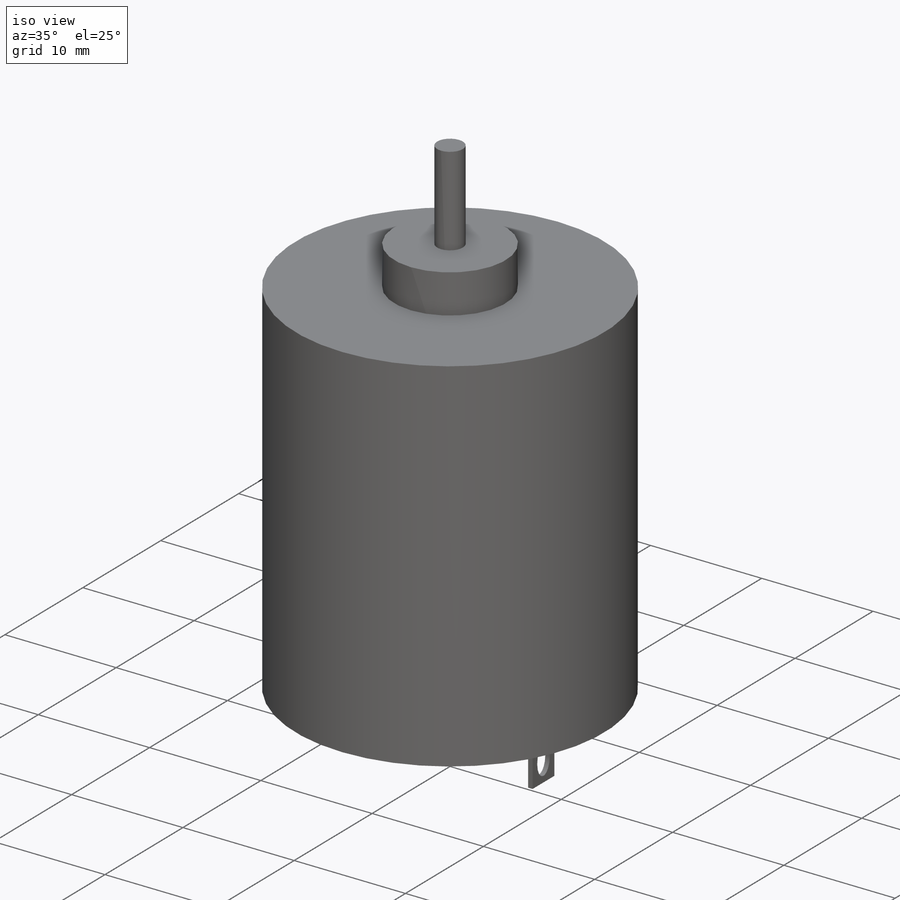
[diagram: iso view]
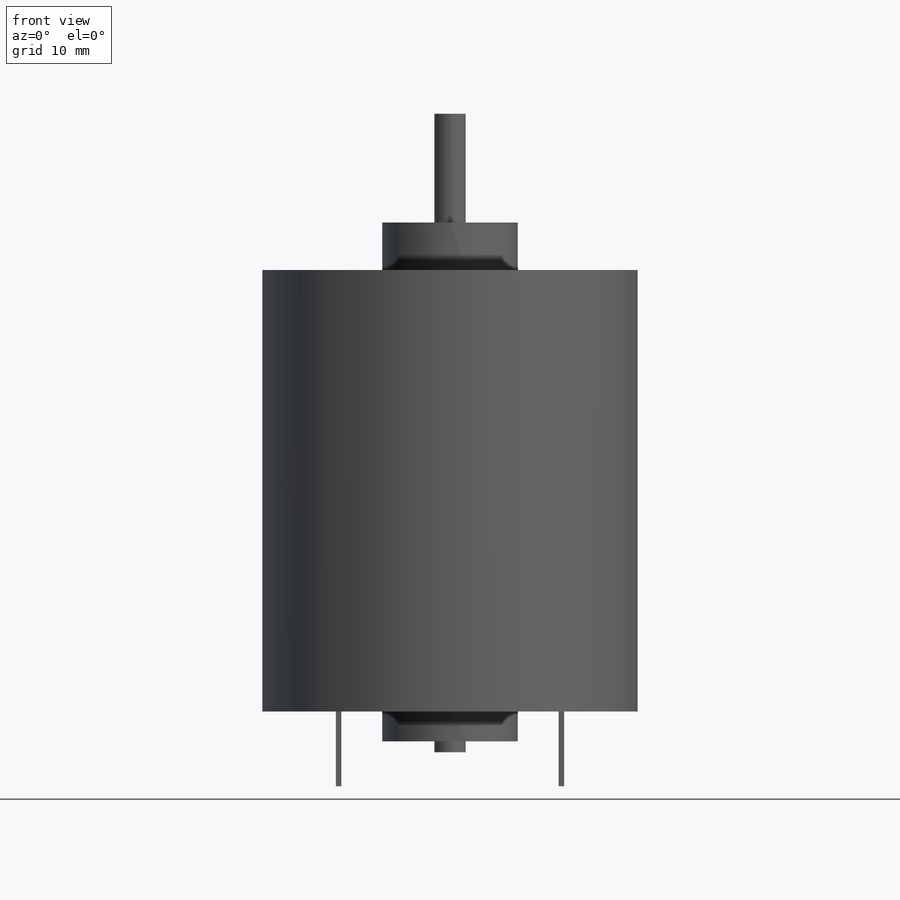
[diagram: front view]
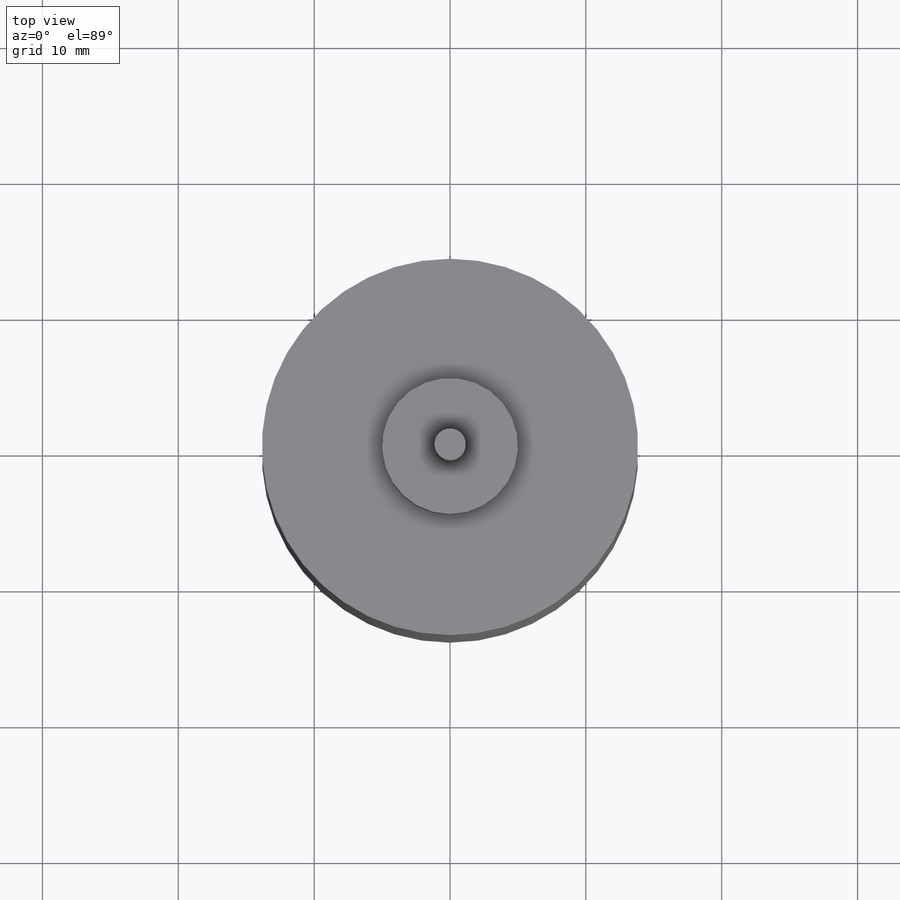
[diagram: top view]
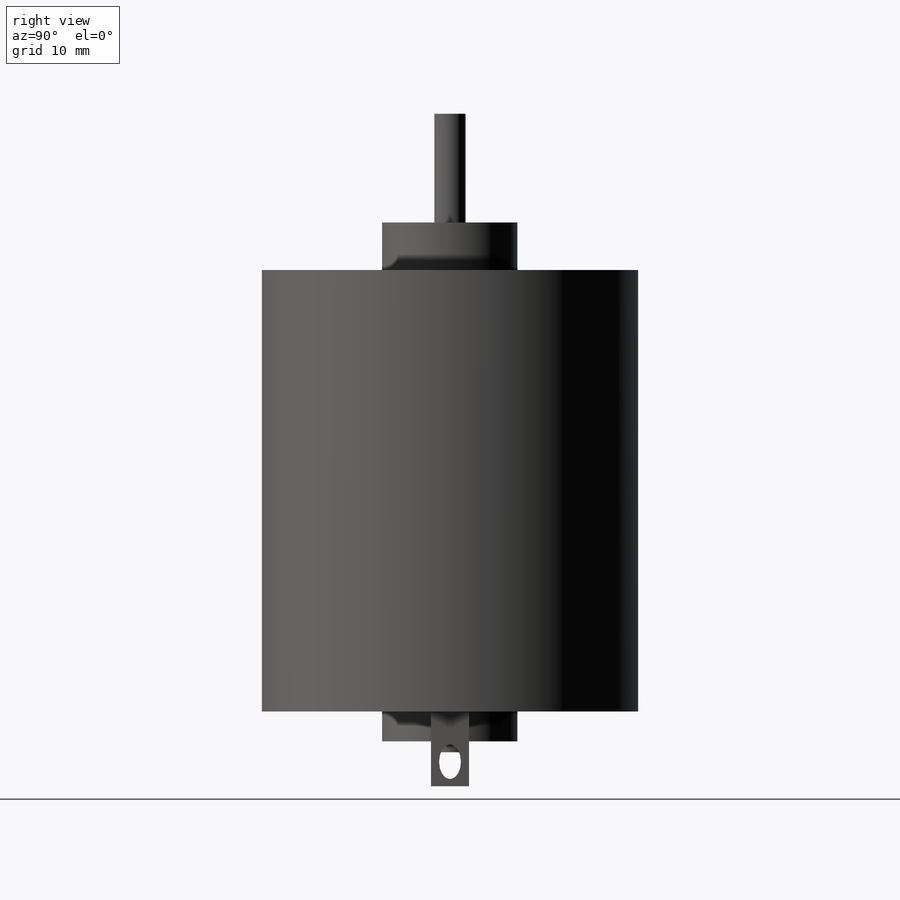
[diagram: right view]
SOLIDWORKS PART (.sldprt)
format: sldprt  version: not decoded by parser v0  size: 219,648 bytes
history: native  units: mm
features: sketch x6, extrude x4, plane x3, cut_extrude x2, material x1 (+9 scaffold rows collapsed)
feature tree (25):
  scaffold x9  (default folders/planes/origin — collapsed)
  material  "Matériau <non spécifié>"
  plane  "Plan de face"
  plane  "Plan de dessus"
  plane  "Plan de droite"
  sketch  "Esquisse1"  dims[D1=27.7mm D2=2.305mm D3=10.0mm D4=0.4mm D5=1.4mm D6=1.4mm D7=8.0mm D8=0.4mm D9=8.0mm D10=1.4mm D11=1.4mm]
  extrude  "Boss.-Extru.1"  Depth=32.5mm
  extrude  "Boss.-Extru.2"  [1 undecoded]
  sketch  "Esquisse1<3>"  dims[D1=36.0mm D2=2.2mm]
  extrude  "Boss.-Extru.3"  [1 undecoded]
  sketch  "Esquisse1<4>"  dims[D1=44.0mm D2=3.0mm]
  extrude  "Boss.-Extru.4"  [1 undecoded]
  sketch  "Esquisse1<5>"  dims[D1=5.5mm]
  sketch  "Esquisse2"
  cut_extrude  "Enlèv. mat.-Extru.2"  [1 undecoded]
  sketch  "Esquisse3"
  cut_extrude  "Enlèv. mat.-Extru.3"  [1 undecoded]
decode coverage: 5 of 12 modeling features carry decoded parameters
note: 5 parameter values undecoded
summary: no parameter record found for 5 features
note: suppression state not decoded; provenance and decode notes live in map.json
